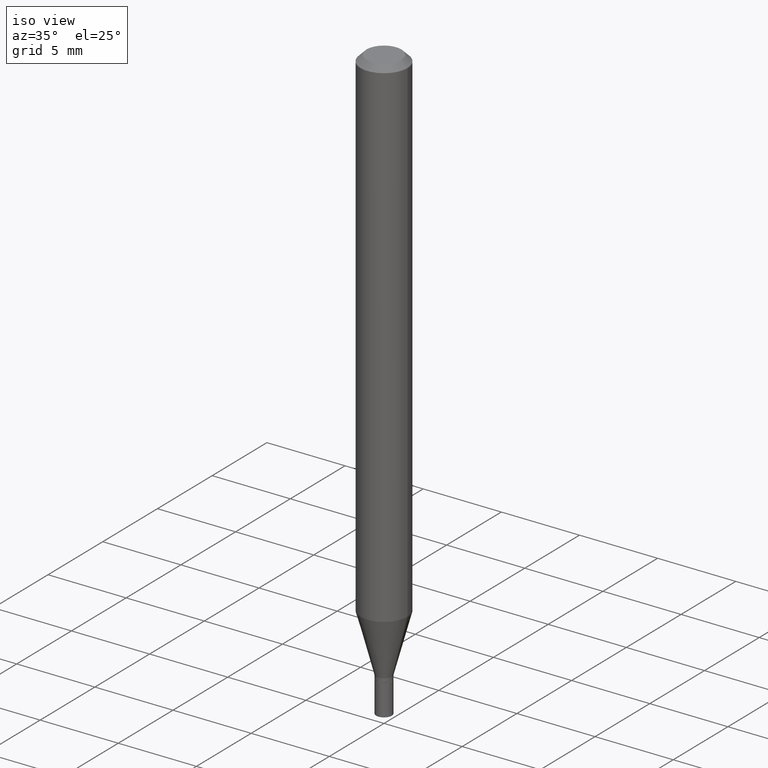
[diagram: clean part render]
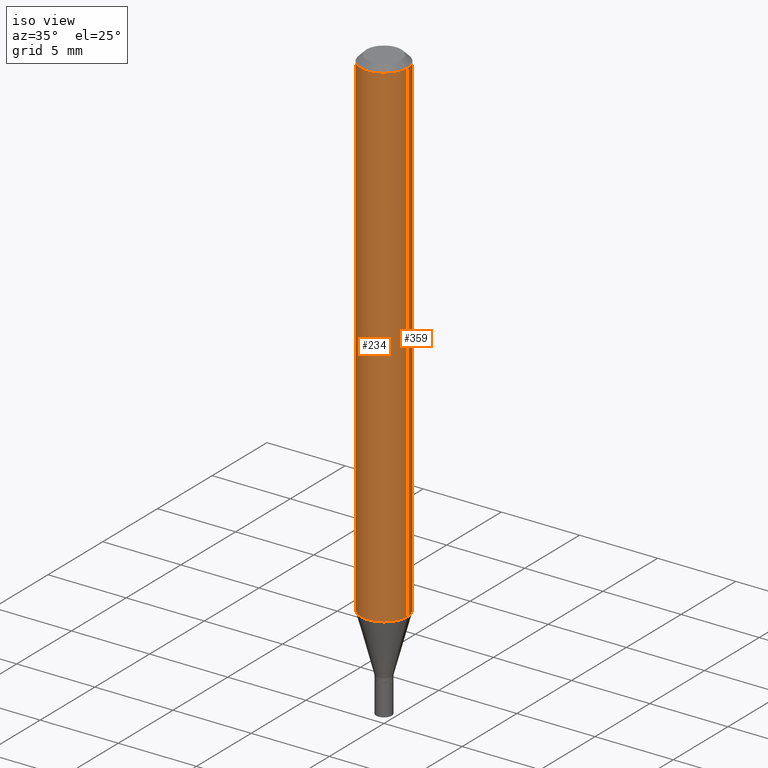
[diagram: same view with one multi-face feature highlighted, each face labeled with its STEP entity id]
A machine part, iso view. The highlighted faces form ONE feature: a constant-radius fillet chain: 2 tangent blend faces with common blend radius 1.4999 mm. The faces share edges in the B-rep.
Their STEP definitions:
[1] entity #359 (Cylinder):
#22 = CARTESIAN_POINT ( 'NONE',  ( 3.668203209277705088E-31, -5.237222008264718399E-17, -0.01499999999999999944 ) ) ;
#34 = CARTESIAN_POINT ( 'NONE',  ( 0.05905000000000001914, -4.826078435953056786E-15, -1.264143800722163924 ) ) ;
#36 = EDGE_LOOP ( 'NONE', ( #418, #274, #221, #265 ) ) ;
#45 = DIRECTION ( 'NONE',  ( -2.445468806185136597E-29, 3.491481338843145583E-15, 1.000000000000000000 ) ) ;
#54 = EDGE_CURVE ( 'NONE', #129, #405, #457, .T. ) ;
#58 = DIRECTION ( 'NONE',  ( 1.000000000000000000, -6.982962677686270655E-15, 0.000000000000000000 ) ) ;
#110 = CARTESIAN_POINT ( 'NONE',  ( -0.05905000000000001914, 4.195754854663392958E-16, -2.904631170795522943E-30 ) ) ;
#129 = VERTEX_POINT ( 'NONE', #34 ) ;
#154 = CYLINDRICAL_SURFACE ( 'NONE', #426, 0.05905000000000001914 ) ;
#159 = DIRECTION ( 'NONE',  ( 1.000000000000000000, -6.982962677686266711E-15, 0.000000000000000000 ) ) ;
#164 = DIRECTION ( 'NONE',  ( 1.000000000000000000, -6.982962677686266711E-15, 4.876176775795935793E-29 ) ) ;
#195 = EDGE_CURVE ( 'NONE', #405, #197, #290, .T. ) ;
#197 = VERTEX_POINT ( 'NONE', #431 ) ;
#199 = VECTOR ( 'NONE', #410, 39.37007874015748143 ) ;
#201 = CARTESIAN_POINT ( 'NONE',  ( -0.05905000000000001914, -3.994159004369343951E-15, -1.264143800722163924 ) ) ;
#221 = ORIENTED_EDGE ( 'NONE', *, *, #352, .F. ) ;
#222 = CARTESIAN_POINT ( 'NONE',  ( 0.000000000000000000, 0.000000000000000000, 0.000000000000000000 ) ) ;
#235 = CARTESIAN_POINT ( 'NONE',  ( 3.091424231198371780E-29, -4.413734489835683444E-15, -1.264143800722163924 ) ) ;
#244 = VERTEX_POINT ( 'NONE', #321 ) ;
#248 = AXIS2_PLACEMENT_3D ( 'NONE', #22, #445, #159 ) ;
#261 = CARTESIAN_POINT ( 'NONE',  ( 0.05905000000000001914, -4.123439461173741806E-16, 2.879382386107500921E-30 ) ) ;
#265 = ORIENTED_EDGE ( 'NONE', *, *, #284, .F. ) ;
#274 = ORIENTED_EDGE ( 'NONE', *, *, #195, .T. ) ;
#284 = EDGE_CURVE ( 'NONE', #129, #244, #451, .T. ) ;
#290 = LINE ( 'NONE', #110, #323 ) ;
#311 = AXIS2_PLACEMENT_3D ( 'NONE', #235, #382, #58 ) ;
#321 = CARTESIAN_POINT ( 'NONE',  ( 0.05905000000000001914, -4.647161662000214077E-16, -0.01499999999999999944 ) ) ;
#323 = VECTOR ( 'NONE', #432, 39.37007874015748143 ) ;
#352 = EDGE_CURVE ( 'NONE', #244, #197, #390, .T. ) ;
#359 = ADVANCED_FACE ( 'NONE', ( #448 ), #154, .T. ) ;
#382 = DIRECTION ( 'NONE',  ( -2.445468806185136597E-29, 3.491481338843145583E-15, 1.000000000000000000 ) ) ;
#390 = CIRCLE ( 'NONE', #248, 0.05905000000000001914 ) ;
#405 = VERTEX_POINT ( 'NONE', #201 ) ;
#410 = DIRECTION ( 'NONE',  ( -2.445468806185136877E-29, 3.491481338843145188E-15, 1.000000000000000000 ) ) ;
#418 = ORIENTED_EDGE ( 'NONE', *, *, #54, .T. ) ;
#426 = AXIS2_PLACEMENT_3D ( 'NONE', #222, #45, #164 ) ;
#431 = CARTESIAN_POINT ( 'NONE',  ( -0.05905000000000001914, -1.813477869492825966E-15, -0.01499999999999999944 ) ) ;
#432 = DIRECTION ( 'NONE',  ( -2.445468806185136877E-29, 3.491481338843145188E-15, 1.000000000000000000 ) ) ;
#445 = DIRECTION ( 'NONE',  ( -2.445468806185136597E-29, 3.491481338843145583E-15, 1.000000000000000000 ) ) ;
#448 = FACE_OUTER_BOUND ( 'NONE', #36, .T. ) ;
#451 = LINE ( 'NONE', #261, #199 ) ;
#457 = CIRCLE ( 'NONE', #311, 0.05905000000000001914 ) ;
[2] entity #234 (Cylinder):
#1 = ORIENTED_EDGE ( 'NONE', *, *, #444, .T. ) ;
#34 = CARTESIAN_POINT ( 'NONE',  ( 0.05905000000000001914, -4.826078435953056786E-15, -1.264143800722163924 ) ) ;
#76 = FACE_OUTER_BOUND ( 'NONE', #408, .T. ) ;
#110 = CARTESIAN_POINT ( 'NONE',  ( -0.05905000000000001914, 4.195754854663392958E-16, -2.904631170795522943E-30 ) ) ;
#129 = VERTEX_POINT ( 'NONE', #34 ) ;
#140 = DIRECTION ( 'NONE',  ( -2.445468806185136597E-29, 3.491481338843145583E-15, 1.000000000000000000 ) ) ;
#147 = CYLINDRICAL_SURFACE ( 'NONE', #379, 0.05905000000000001914 ) ;
#150 = DIRECTION ( 'NONE',  ( 1.000000000000000000, -6.982962677686266711E-15, 0.000000000000000000 ) ) ;
#151 = AXIS2_PLACEMENT_3D ( 'NONE', #370, #228, #150 ) ;
#179 = DIRECTION ( 'NONE',  ( -2.445468806185136597E-29, 3.491481338843145583E-15, 1.000000000000000000 ) ) ;
#195 = EDGE_CURVE ( 'NONE', #405, #197, #290, .T. ) ;
#197 = VERTEX_POINT ( 'NONE', #431 ) ;
#199 = VECTOR ( 'NONE', #410, 39.37007874015748143 ) ;
#201 = CARTESIAN_POINT ( 'NONE',  ( -0.05905000000000001914, -3.994159004369343951E-15, -1.264143800722163924 ) ) ;
#228 = DIRECTION ( 'NONE',  ( -2.445468806185136597E-29, 3.491481338843145583E-15, 1.000000000000000000 ) ) ;
#229 = ORIENTED_EDGE ( 'NONE', *, *, #284, .T. ) ;
#233 = AXIS2_PLACEMENT_3D ( 'NONE', #252, #179, #291 ) ;
#234 = ADVANCED_FACE ( 'NONE', ( #76 ), #147, .T. ) ;
#240 = ORIENTED_EDGE ( 'NONE', *, *, #195, .F. ) ;
#244 = VERTEX_POINT ( 'NONE', #321 ) ;
#250 = DIRECTION ( 'NONE',  ( 1.000000000000000000, -6.982962677686266711E-15, 4.876176775795935793E-29 ) ) ;
#252 = CARTESIAN_POINT ( 'NONE',  ( 3.091424231198371780E-29, -4.413734489835683444E-15, -1.264143800722163924 ) ) ;
#261 = CARTESIAN_POINT ( 'NONE',  ( 0.05905000000000001914, -4.123439461173741806E-16, 2.879382386107500921E-30 ) ) ;
#276 = ORIENTED_EDGE ( 'NONE', *, *, #387, .F. ) ;
#284 = EDGE_CURVE ( 'NONE', #129, #244, #451, .T. ) ;
#290 = LINE ( 'NONE', #110, #323 ) ;
#291 = DIRECTION ( 'NONE',  ( 1.000000000000000000, -6.982962677686270655E-15, 0.000000000000000000 ) ) ;
#293 = CARTESIAN_POINT ( 'NONE',  ( 0.000000000000000000, 0.000000000000000000, 0.000000000000000000 ) ) ;
#321 = CARTESIAN_POINT ( 'NONE',  ( 0.05905000000000001914, -4.647161662000214077E-16, -0.01499999999999999944 ) ) ;
#323 = VECTOR ( 'NONE', #432, 39.37007874015748143 ) ;
#349 = CIRCLE ( 'NONE', #151, 0.05905000000000001914 ) ;
#370 = CARTESIAN_POINT ( 'NONE',  ( 3.668203209277705088E-31, -5.237222008264718399E-17, -0.01499999999999999944 ) ) ;
#379 = AXIS2_PLACEMENT_3D ( 'NONE', #293, #140, #250 ) ;
#387 = EDGE_CURVE ( 'NONE', #197, #244, #349, .T. ) ;
#401 = CIRCLE ( 'NONE', #233, 0.05905000000000001914 ) ;
#405 = VERTEX_POINT ( 'NONE', #201 ) ;
#408 = EDGE_LOOP ( 'NONE', ( #240, #1, #229, #276 ) ) ;
#410 = DIRECTION ( 'NONE',  ( -2.445468806185136877E-29, 3.491481338843145188E-15, 1.000000000000000000 ) ) ;
#431 = CARTESIAN_POINT ( 'NONE',  ( -0.05905000000000001914, -1.813477869492825966E-15, -0.01499999999999999944 ) ) ;
#432 = DIRECTION ( 'NONE',  ( -2.445468806185136877E-29, 3.491481338843145188E-15, 1.000000000000000000 ) ) ;
#444 = EDGE_CURVE ( 'NONE', #405, #129, #401, .T. ) ;
#451 = LINE ( 'NONE', #261, #199 ) ;